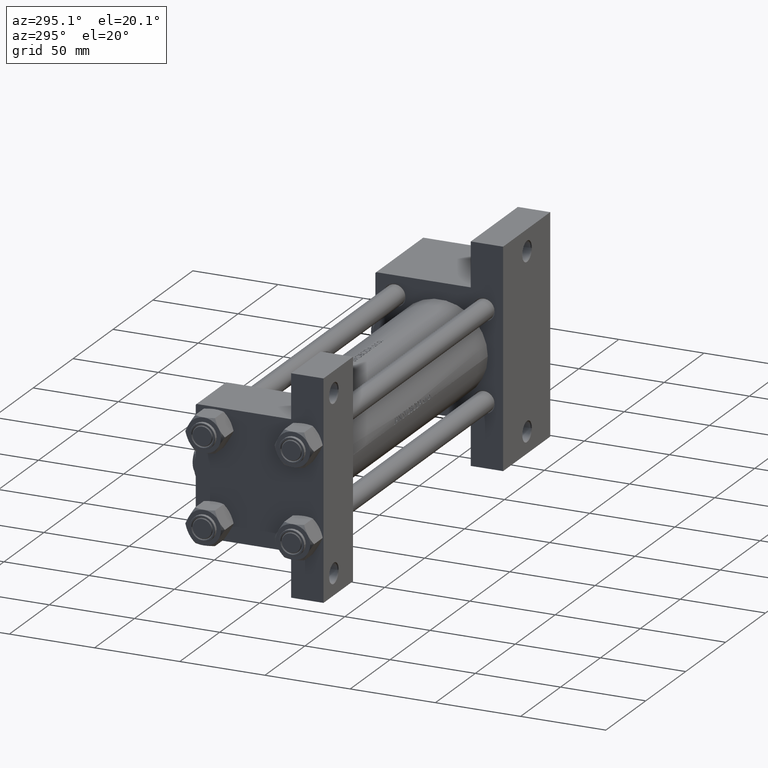
[diagram: clean part render]
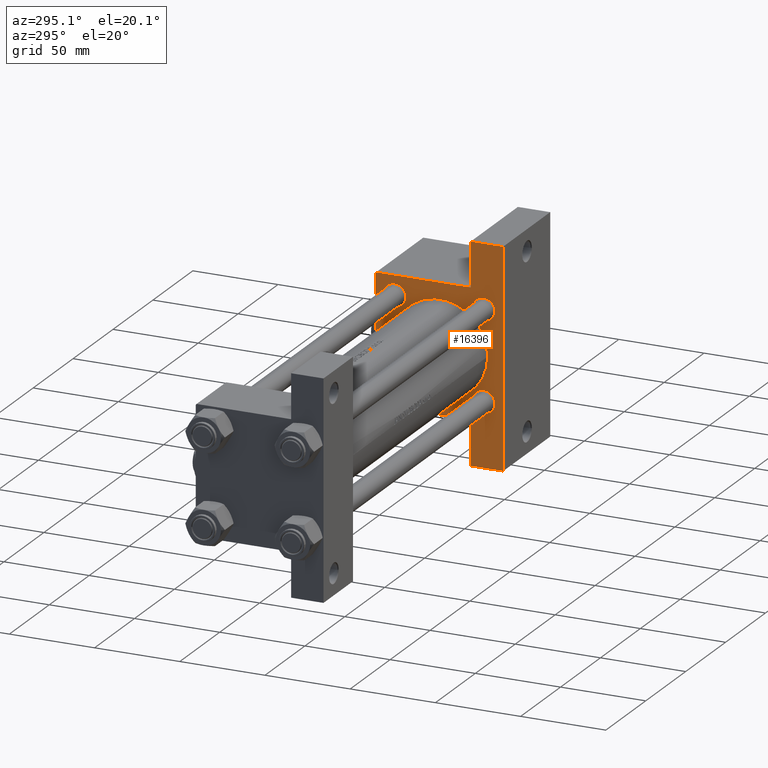
[diagram: same view with one face highlighted and labeled with its STEP entity id]
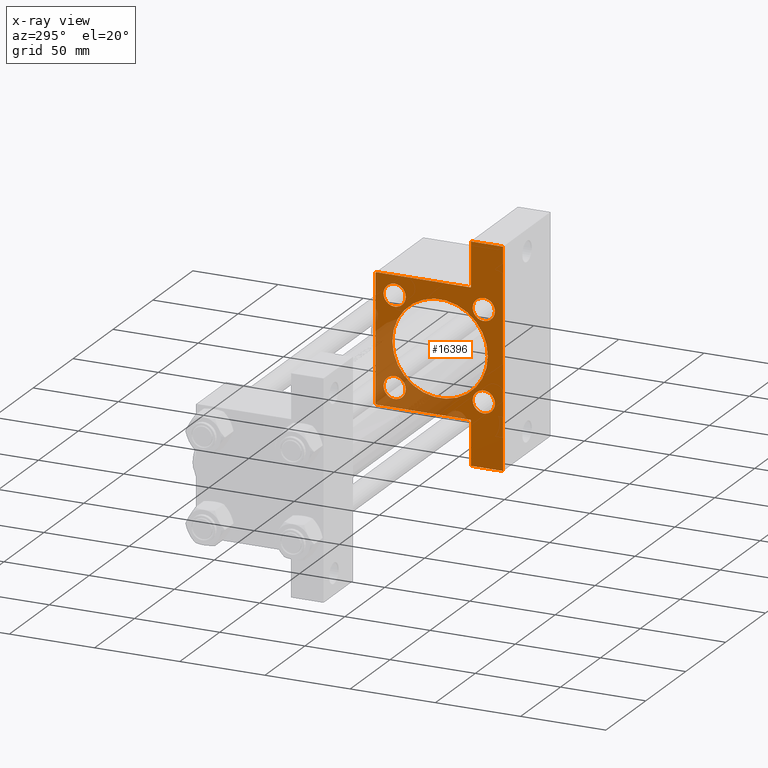
[diagram: x-ray of the same camera — body ghosted, the highlighted face saturated]
A machine part, auxiliary view. The second image highlights one B-rep face of the part: STEP entity #16396.
The next image is the same camera in x-ray: the body ghosted, the highlighted face saturated — about 24% of this face is hidden behind the body in this view.
In plain terms, the highlighted planar face has unit normal (-1, 0, 0).
Its self-contained STEP definition (entity closure, byte-faithful):
#344 = FACE_BOUND ( 'NONE', #21264, .T. ) ;
#610 = VERTEX_POINT ( 'NONE', #18181 ) ;
#852 = CARTESIAN_POINT ( 'NONE',  ( 225.0000000000000284, 63.50000000000000000, -18.50000000000000000 ) ) ;
#939 = CARTESIAN_POINT ( 'NONE',  ( 225.0000000000000000, 26.14999999999999858, 19.65000000000000568 ) ) ;
#1070 = CARTESIAN_POINT ( 'NONE',  ( 225.0000000000000000, -26.14999999999999147, -19.65000000000000213 ) ) ;
#1327 = DIRECTION ( 'NONE',  ( 0.000000000000000000, -1.000000000000000000, 0.000000000000000000 ) ) ;
#1680 = AXIS2_PLACEMENT_3D ( 'NONE', #46889, #39490, #26712 ) ;
#2336 = CIRCLE ( 'NONE', #13810, 6.500000000000008882 ) ;
#2405 = DIRECTION ( 'NONE',  ( 1.000000000000000000, 0.000000000000000000, -0.000000000000000000 ) ) ;
#2442 = VERTEX_POINT ( 'NONE', #11733 ) ;
#2805 = CARTESIAN_POINT ( 'NONE',  ( 225.0000000000000000, -37.50000000000000000, 36.99999999999995026 ) ) ;
#2819 = AXIS2_PLACEMENT_3D ( 'NONE', #8029, #31082, #11615 ) ;
#3131 = CIRCLE ( 'NONE', #24430, 28.00000000000000000 ) ;
#3364 = DIRECTION ( 'NONE',  ( 0.000000000000000000, 0.000000000000000000, 1.000000000000000000 ) ) ;
#3423 = ORIENTED_EDGE ( 'NONE', *, *, #42401, .T. ) ;
#3667 = FACE_BOUND ( 'NONE', #30219, .T. ) ;
#4071 = EDGE_CURVE ( 'NONE', #48345, #47651, #45516, .T. ) ;
#4181 = ORIENTED_EDGE ( 'NONE', *, *, #39552, .T. ) ;
#4185 = CARTESIAN_POINT ( 'NONE',  ( 225.0000000000000284, 63.50000000000000000, -18.50000000000000000 ) ) ;
#4664 = VECTOR ( 'NONE', #13457, 1000.000000000000000 ) ;
#5804 = AXIS2_PLACEMENT_3D ( 'NONE', #40877, #44454, #40372 ) ;
#6590 = CIRCLE ( 'NONE', #5804, 6.500000000000008882 ) ;
#6739 = ORIENTED_EDGE ( 'NONE', *, *, #43970, .T. ) ;
#6918 = ORIENTED_EDGE ( 'NONE', *, *, #15648, .T. ) ;
#7024 = VERTEX_POINT ( 'NONE', #21217 ) ;
#7463 = ORIENTED_EDGE ( 'NONE', *, *, #12852, .F. ) ;
#8029 = CARTESIAN_POINT ( 'NONE',  ( 225.0000000000000000, 0.000000000000000000, -0.5000000000000004441 ) ) ;
#8707 = CARTESIAN_POINT ( 'NONE',  ( 225.0000000000000000, 26.14999999999999858, 26.15000000000000213 ) ) ;
#9102 = VECTOR ( 'NONE', #20658, 1000.000000000000000 ) ;
#9556 = CARTESIAN_POINT ( 'NONE',  ( 225.0000000000000000, 37.50000000000000000, 37.49999999999999289 ) ) ;
#9904 = EDGE_CURVE ( 'NONE', #48594, #17587, #25977, .T. ) ;
#10361 = DIRECTION ( 'NONE',  ( 0.000000000000000000, 0.7071067811865474617, -0.7071067811865474617 ) ) ;
#10554 = DIRECTION ( 'NONE',  ( 0.000000000000000000, -9.251858538542972814E-17, -1.000000000000000000 ) ) ;
#10793 = ORIENTED_EDGE ( 'NONE', *, *, #41746, .F. ) ;
#10971 = CARTESIAN_POINT ( 'NONE',  ( 225.0000000000000000, -26.14999999999999147, -26.15000000000000924 ) ) ;
#11069 = LINE ( 'NONE', #4185, #44970 ) ;
#11079 = PLANE ( 'NONE',  #1680 ) ;
#11097 = EDGE_CURVE ( 'NONE', #21173, #2442, #3131, .T. ) ;
#11615 = DIRECTION ( 'NONE',  ( 0.000000000000000000, 0.000000000000000000, -1.000000000000000000 ) ) ;
#11646 = AXIS2_PLACEMENT_3D ( 'NONE', #45361, #2405, #18025 ) ;
#11733 = CARTESIAN_POINT ( 'NONE',  ( 225.0000000000000000, 3.429011037612589276E-15, -28.50000000000000000 ) ) ;
#11765 = DIRECTION ( 'NONE',  ( 1.000000000000000000, 0.000000000000000000, -0.000000000000000000 ) ) ;
#12852 = EDGE_CURVE ( 'NONE', #39180, #18394, #18001, .T. ) ;
#13457 = DIRECTION ( 'NONE',  ( 0.000000000000000000, 0.000000000000000000, -1.000000000000000000 ) ) ;
#13719 = DIRECTION ( 'NONE',  ( -0.000000000000000000, 0.7071067811865474617, 0.7071067811865474617 ) ) ;
#13810 = AXIS2_PLACEMENT_3D ( 'NONE', #39480, #25633, #40226 ) ;
#13926 = VERTEX_POINT ( 'NONE', #32789 ) ;
#14148 = AXIS2_PLACEMENT_3D ( 'NONE', #34587, #37897, #3364 ) ;
#14725 = LINE ( 'NONE', #49485, #41484 ) ;
#15648 = EDGE_CURVE ( 'NONE', #16603, #7024, #11069, .T. ) ;
#16015 = VECTOR ( 'NONE', #13719, 1000.000000000000114 ) ;
#16178 = AXIS2_PLACEMENT_3D ( 'NONE', #8707, #47831, #28417 ) ;
#16311 = LINE ( 'NONE', #40075, #9102 ) ;
#16396 = ADVANCED_FACE ( 'NONE', ( #35657, #3667, #38464, #23660, #344, #42812 ), #11079, .T. ) ;
#16485 = ORIENTED_EDGE ( 'NONE', *, *, #23749, .T. ) ;
#16603 = VERTEX_POINT ( 'NONE', #852 ) ;
#17101 = EDGE_CURVE ( 'NONE', #20495, #22298, #32779, .T. ) ;
#17203 = EDGE_CURVE ( 'NONE', #22298, #20495, #6590, .T. ) ;
#17425 = CARTESIAN_POINT ( 'NONE',  ( 225.0000000000000000, -63.50000000000002842, -37.50000000000000000 ) ) ;
#17551 = DIRECTION ( 'NONE',  ( 0.000000000000000000, 0.000000000000000000, 1.000000000000000000 ) ) ;
#17587 = VERTEX_POINT ( 'NONE', #939 ) ;
#17640 = EDGE_CURVE ( 'NONE', #38465, #42165, #16311, .T. ) ;
#17819 = LINE ( 'NONE', #48748, #16015 ) ;
#18001 = LINE ( 'NONE', #9556, #26893 ) ;
#18025 = DIRECTION ( 'NONE',  ( 0.000000000000000000, 0.000000000000000000, 1.000000000000000000 ) ) ;
#18171 = DIRECTION ( 'NONE',  ( 1.000000000000000000, 0.000000000000000000, -0.000000000000000000 ) ) ;
#18181 = CARTESIAN_POINT ( 'NONE',  ( 225.0000000000000000, 37.50000000000000000, -18.50000000000000355 ) ) ;
#18394 = VERTEX_POINT ( 'NONE', #32672 ) ;
#19481 = ORIENTED_EDGE ( 'NONE', *, *, #26243, .T. ) ;
#19820 = ORIENTED_EDGE ( 'NONE', *, *, #49905, .T. ) ;
#20495 = VERTEX_POINT ( 'NONE', #39682 ) ;
#20658 = DIRECTION ( 'NONE',  ( 0.000000000000000000, 1.000000000000000000, 0.000000000000000000 ) ) ;
#20732 = CIRCLE ( 'NONE', #14148, 6.500000000000008882 ) ;
#21069 = VECTOR ( 'NONE', #1327, 1000.000000000000000 ) ;
#21162 = DIRECTION ( 'NONE',  ( -0.000000000000000000, 1.000000000000000000, -0.000000000000000000 ) ) ;
#21173 = VERTEX_POINT ( 'NONE', #32842 ) ;
#21217 = CARTESIAN_POINT ( 'NONE',  ( 225.0000000000000284, 63.50000000000000000, -37.50000000000000000 ) ) ;
#21264 = EDGE_LOOP ( 'NONE', ( #47097, #37876 ) ) ;
#21417 = CARTESIAN_POINT ( 'NONE',  ( 225.0000000000000284, 63.50000000000000000, -18.50000000000000000 ) ) ;
#21596 = VERTEX_POINT ( 'NONE', #17425 ) ;
#21852 = LINE ( 'NONE', #32688, #40658 ) ;
#22298 = VERTEX_POINT ( 'NONE', #1070 ) ;
#22517 = VERTEX_POINT ( 'NONE', #2805 ) ;
#22523 = DIRECTION ( 'NONE',  ( 0.000000000000000000, 0.000000000000000000, -1.000000000000000000 ) ) ;
#22789 = DIRECTION ( 'NONE',  ( 0.000000000000000000, 0.000000000000000000, 1.000000000000000000 ) ) ;
#23045 = CARTESIAN_POINT ( 'NONE',  ( 225.0000000000000000, 37.50000000000000000, 37.49999999999999289 ) ) ;
#23390 = DIRECTION ( 'NONE',  ( 0.000000000000000000, 0.000000000000000000, -1.000000000000000000 ) ) ;
#23487 = AXIS2_PLACEMENT_3D ( 'NONE', #34802, #11765, #22789 ) ;
#23660 = FACE_BOUND ( 'NONE', #24166, .T. ) ;
#23749 = EDGE_CURVE ( 'NONE', #17587, #48594, #23956, .T. ) ;
#23956 = CIRCLE ( 'NONE', #11646, 6.499999999999995559 ) ;
#24166 = EDGE_LOOP ( 'NONE', ( #43001, #29969 ) ) ;
#24392 = LINE ( 'NONE', #35645, #21069 ) ;
#24430 = AXIS2_PLACEMENT_3D ( 'NONE', #25445, #29527, #26196 ) ;
#24943 = DIRECTION ( 'NONE',  ( 0.000000000000000000, -1.000000000000000000, -1.850371707708594316E-16 ) ) ;
#25445 = CARTESIAN_POINT ( 'NONE',  ( 225.0000000000000000, 0.000000000000000000, -0.5000000000000004441 ) ) ;
#25633 = DIRECTION ( 'NONE',  ( 1.000000000000000000, 0.000000000000000000, -0.000000000000000000 ) ) ;
#25730 = DIRECTION ( 'NONE',  ( 1.000000000000000000, 0.000000000000000000, -0.000000000000000000 ) ) ;
#25977 = CIRCLE ( 'NONE', #16178, 6.499999999999995559 ) ;
#26196 = DIRECTION ( 'NONE',  ( 0.000000000000000000, 0.000000000000000000, -1.000000000000000000 ) ) ;
#26237 = CARTESIAN_POINT ( 'NONE',  ( 225.0000000000000000, -26.14999999999999147, 26.15000000000000924 ) ) ;
#26243 = EDGE_CURVE ( 'NONE', #13926, #41962, #20732, .T. ) ;
#26685 = AXIS2_PLACEMENT_3D ( 'NONE', #26237, #25730, #17551 ) ;
#26712 = DIRECTION ( 'NONE',  ( 0.000000000000000000, 0.000000000000000000, 1.000000000000000000 ) ) ;
#26893 = VECTOR ( 'NONE', #24943, 1000.000000000000000 ) ;
#28417 = DIRECTION ( 'NONE',  ( 0.000000000000000000, 0.000000000000000000, 1.000000000000000000 ) ) ;
#29216 = ORIENTED_EDGE ( 'NONE', *, *, #9904, .T. ) ;
#29527 = DIRECTION ( 'NONE',  ( 1.000000000000000000, 0.000000000000000000, 0.000000000000000000 ) ) ;
#29701 = EDGE_CURVE ( 'NONE', #2442, #21173, #50229, .T. ) ;
#29969 = ORIENTED_EDGE ( 'NONE', *, *, #17101, .T. ) ;
#30219 = EDGE_LOOP ( 'NONE', ( #29216, #16485 ) ) ;
#31082 = DIRECTION ( 'NONE',  ( 1.000000000000000000, 0.000000000000000000, 0.000000000000000000 ) ) ;
#31418 = CARTESIAN_POINT ( 'NONE',  ( 225.0000000000000000, -37.50000000000000000, -18.50000000000000000 ) ) ;
#31555 = ORIENTED_EDGE ( 'NONE', *, *, #32264, .T. ) ;
#31981 = AXIS2_PLACEMENT_3D ( 'NONE', #10971, #18171, #37348 ) ;
#32176 = LINE ( 'NONE', #44656, #4664 ) ;
#32264 = EDGE_CURVE ( 'NONE', #22517, #18394, #17819, .T. ) ;
#32672 = CARTESIAN_POINT ( 'NONE',  ( 225.0000000000000000, -36.99999999999997158, 37.49999999999997868 ) ) ;
#32679 = VECTOR ( 'NONE', #22523, 1000.000000000000000 ) ;
#32688 = CARTESIAN_POINT ( 'NONE',  ( 225.0000000000000000, -37.50000000000000000, 37.49999999999997868 ) ) ;
#32779 = CIRCLE ( 'NONE', #31981, 6.500000000000008882 ) ;
#32789 = CARTESIAN_POINT ( 'NONE',  ( 225.0000000000000000, 26.14999999999999858, -19.64999999999999503 ) ) ;
#32842 = CARTESIAN_POINT ( 'NONE',  ( 225.0000000000000000, 0.000000000000000000, 27.50000000000000000 ) ) ;
#33313 = ORIENTED_EDGE ( 'NONE', *, *, #40405, .F. ) ;
#33587 = EDGE_LOOP ( 'NONE', ( #19481, #6739 ) ) ;
#34587 = CARTESIAN_POINT ( 'NONE',  ( 225.0000000000000000, 26.14999999999999858, -26.15000000000000213 ) ) ;
#34658 = CARTESIAN_POINT ( 'NONE',  ( 225.0000000000000000, 37.50000000000000000, 36.99999999999993605 ) ) ;
#34717 = CARTESIAN_POINT ( 'NONE',  ( 225.0000000000000000, -26.14999999999999147, 19.65000000000000213 ) ) ;
#34802 = CARTESIAN_POINT ( 'NONE',  ( 225.0000000000000000, -26.14999999999999147, 26.15000000000000924 ) ) ;
#35645 = CARTESIAN_POINT ( 'NONE',  ( 225.0000000000000000, 37.50000000000000000, -37.50000000000000000 ) ) ;
#35657 = FACE_BOUND ( 'NONE', #46318, .T. ) ;
#36297 = VERTEX_POINT ( 'NONE', #34658 ) ;
#37348 = DIRECTION ( 'NONE',  ( 0.000000000000000000, 0.000000000000000000, 1.000000000000000000 ) ) ;
#37385 = CARTESIAN_POINT ( 'NONE',  ( 225.0000000000000000, 36.99999999999994316, 37.49999999999999289 ) ) ;
#37606 = ORIENTED_EDGE ( 'NONE', *, *, #4071, .T. ) ;
#37876 = ORIENTED_EDGE ( 'NONE', *, *, #29701, .T. ) ;
#37897 = DIRECTION ( 'NONE',  ( 1.000000000000000000, 0.000000000000000000, -0.000000000000000000 ) ) ;
#38388 = VECTOR ( 'NONE', #21162, 1000.000000000000000 ) ;
#38464 = FACE_BOUND ( 'NONE', #33587, .T. ) ;
#38465 = VERTEX_POINT ( 'NONE', #44330 ) ;
#38872 = LINE ( 'NONE', #23045, #32679 ) ;
#39180 = VERTEX_POINT ( 'NONE', #37385 ) ;
#39480 = CARTESIAN_POINT ( 'NONE',  ( 225.0000000000000000, 26.14999999999999858, -26.15000000000000213 ) ) ;
#39490 = DIRECTION ( 'NONE',  ( -1.000000000000000000, -0.000000000000000000, 0.000000000000000000 ) ) ;
#39552 = EDGE_CURVE ( 'NONE', #47651, #48345, #47917, .T. ) ;
#39682 = CARTESIAN_POINT ( 'NONE',  ( 225.0000000000000000, -26.14999999999999147, -32.65000000000002700 ) ) ;
#40075 = CARTESIAN_POINT ( 'NONE',  ( 225.0000000000000000, -63.50000000000002842, -18.50000000000000000 ) ) ;
#40226 = DIRECTION ( 'NONE',  ( 0.000000000000000000, 0.000000000000000000, 1.000000000000000000 ) ) ;
#40372 = DIRECTION ( 'NONE',  ( 0.000000000000000000, 0.000000000000000000, 1.000000000000000000 ) ) ;
#40405 = EDGE_CURVE ( 'NONE', #38465, #21596, #32176, .T. ) ;
#40658 = VECTOR ( 'NONE', #10554, 1000.000000000000000 ) ;
#40761 = ORIENTED_EDGE ( 'NONE', *, *, #17640, .T. ) ;
#40877 = CARTESIAN_POINT ( 'NONE',  ( 225.0000000000000000, -26.14999999999999147, -26.15000000000000924 ) ) ;
#41484 = VECTOR ( 'NONE', #10361, 1000.000000000000114 ) ;
#41746 = EDGE_CURVE ( 'NONE', #22517, #42165, #21852, .T. ) ;
#41917 = EDGE_LOOP ( 'NONE', ( #7463, #3423, #19820, #45002, #6918, #46085, #33313, #40761, #10793, #31555 ) ) ;
#41947 = EDGE_CURVE ( 'NONE', #7024, #21596, #24392, .T. ) ;
#41962 = VERTEX_POINT ( 'NONE', #50119 ) ;
#42165 = VERTEX_POINT ( 'NONE', #31418 ) ;
#42401 = EDGE_CURVE ( 'NONE', #39180, #36297, #14725, .T. ) ;
#42812 = FACE_OUTER_BOUND ( 'NONE', #41917, .T. ) ;
#43001 = ORIENTED_EDGE ( 'NONE', *, *, #17203, .T. ) ;
#43970 = EDGE_CURVE ( 'NONE', #41962, #13926, #2336, .T. ) ;
#44330 = CARTESIAN_POINT ( 'NONE',  ( 225.0000000000000000, -63.50000000000002842, -18.50000000000000000 ) ) ;
#44454 = DIRECTION ( 'NONE',  ( 1.000000000000000000, 0.000000000000000000, -0.000000000000000000 ) ) ;
#44656 = CARTESIAN_POINT ( 'NONE',  ( 225.0000000000000000, -63.50000000000002842, -18.50000000000000000 ) ) ;
#44847 = CARTESIAN_POINT ( 'NONE',  ( 225.0000000000000000, -26.14999999999999147, 32.65000000000001990 ) ) ;
#44970 = VECTOR ( 'NONE', #23390, 1000.000000000000000 ) ;
#45002 = ORIENTED_EDGE ( 'NONE', *, *, #46275, .T. ) ;
#45361 = CARTESIAN_POINT ( 'NONE',  ( 225.0000000000000000, 26.14999999999999858, 26.15000000000000213 ) ) ;
#45516 = CIRCLE ( 'NONE', #23487, 6.500000000000008882 ) ;
#46085 = ORIENTED_EDGE ( 'NONE', *, *, #41947, .T. ) ;
#46275 = EDGE_CURVE ( 'NONE', #610, #16603, #47995, .T. ) ;
#46318 = EDGE_LOOP ( 'NONE', ( #4181, #37606 ) ) ;
#46889 = CARTESIAN_POINT ( 'NONE',  ( 225.0000000000000000, 0.000000000000000000, 0.000000000000000000 ) ) ;
#47097 = ORIENTED_EDGE ( 'NONE', *, *, #11097, .T. ) ;
#47651 = VERTEX_POINT ( 'NONE', #44847 ) ;
#47831 = DIRECTION ( 'NONE',  ( 1.000000000000000000, 0.000000000000000000, -0.000000000000000000 ) ) ;
#47917 = CIRCLE ( 'NONE', #26685, 6.500000000000008882 ) ;
#47995 = LINE ( 'NONE', #21417, #38388 ) ;
#48345 = VERTEX_POINT ( 'NONE', #34717 ) ;
#48594 = VERTEX_POINT ( 'NONE', #49662 ) ;
#48748 = CARTESIAN_POINT ( 'NONE',  ( 225.0000000000000000, -37.24999999999997158, 37.24999999999997158 ) ) ;
#49485 = CARTESIAN_POINT ( 'NONE',  ( 225.0000000000000000, 37.24999999999996447, 37.24999999999996447 ) ) ;
#49662 = CARTESIAN_POINT ( 'NONE',  ( 225.0000000000000000, 26.14999999999999858, 32.65000000000000568 ) ) ;
#49905 = EDGE_CURVE ( 'NONE', #36297, #610, #38872, .T. ) ;
#50119 = CARTESIAN_POINT ( 'NONE',  ( 225.0000000000000000, 26.14999999999999858, -32.65000000000001279 ) ) ;
#50229 = CIRCLE ( 'NONE', #2819, 28.00000000000000000 ) ;